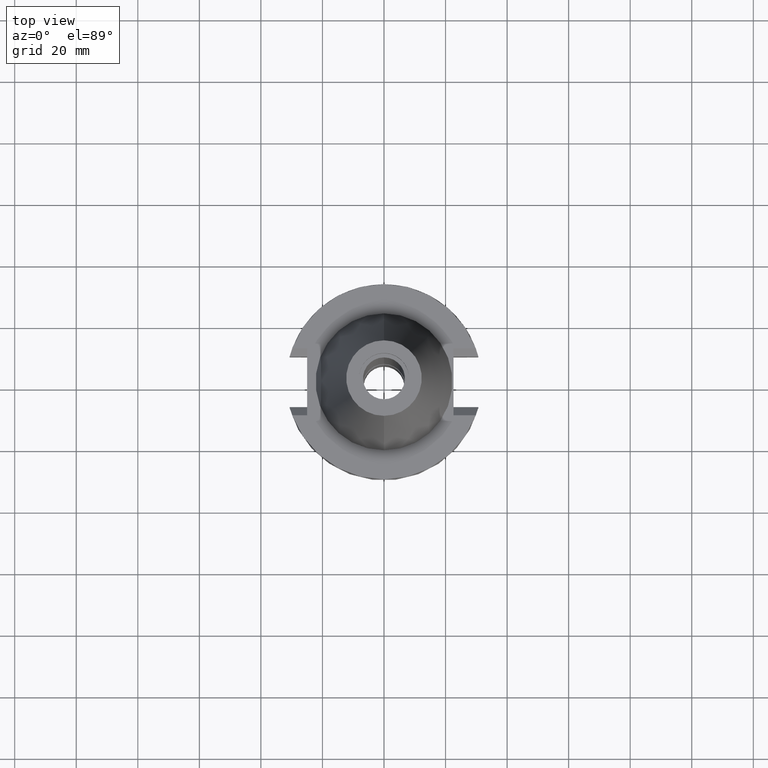
[diagram: clean part render]
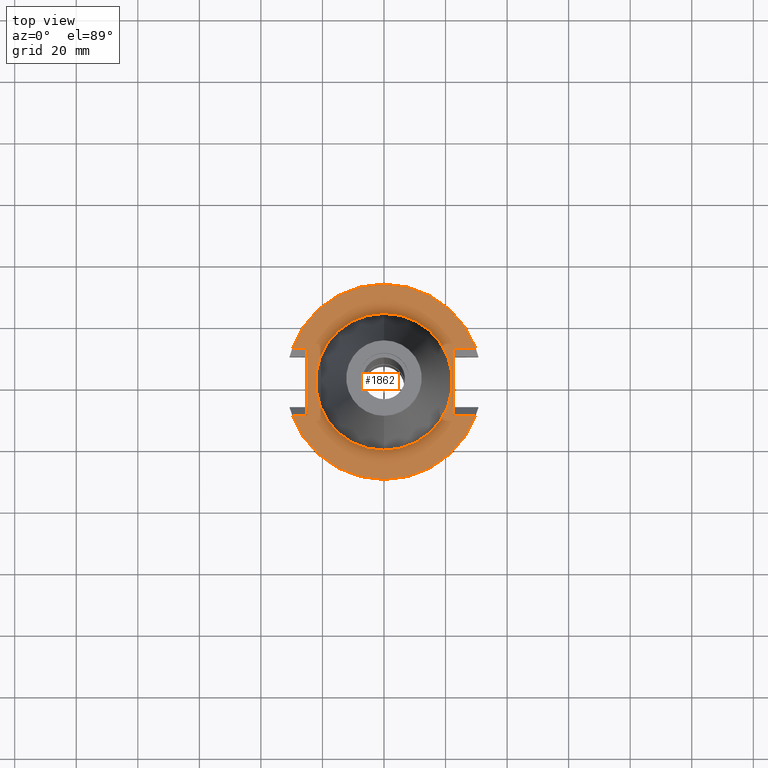
[diagram: same view with one face highlighted and labeled with its STEP entity id]
A machine part, top view. The second image highlights one B-rep face of the part: STEP entity #1862.
In plain terms, the highlighted planar face has unit normal (0, 0, -1).
Its self-contained STEP definition (entity closure, byte-faithful):
#35 = DIRECTION ( 'NONE',  ( 0.0000000000000000000, 0.0000000000000000000, -1.000000000000000000 ) ) ;
#121 = PLANE ( 'NONE',  #377 ) ;
#211 = CARTESIAN_POINT ( 'NONE',  ( 29.82399034335000110, 10.89000000000000057, -1.000000000001000089 ) ) ;
#226 = CARTESIAN_POINT ( 'NONE',  ( -29.82399034335000110, 10.89000000000000057, -1.000000000000000000 ) ) ;
#235 = ORIENTED_EDGE ( 'NONE', *, *, #2080, .T. ) ;
#266 = CARTESIAN_POINT ( 'NONE',  ( 22.57000000000000028, 10.89000000000000057, -1.000000000000000000 ) ) ;
#275 = DIRECTION ( 'NONE',  ( 1.000000000000000000, 6.024046928780999571E-14, 0.0000000000000000000 ) ) ;
#327 = EDGE_CURVE ( 'NONE', #2753, #1372, #1111, .T. ) ;
#353 = DIRECTION ( 'NONE',  ( 0.0000000000000000000, -1.000000000000000000, 0.0000000000000000000 ) ) ;
#377 = AXIS2_PLACEMENT_3D ( 'NONE', #2600, #626, #1136 ) ;
#382 = DIRECTION ( 'NONE',  ( 0.0000000000000000000, 1.000000000000000000, 0.0000000000000000000 ) ) ;
#522 = CARTESIAN_POINT ( 'NONE',  ( 22.57000000000000028, -10.89000000000000057, -1.000000000000000000 ) ) ;
#586 = CIRCLE ( 'NONE', #1443, 22.22500000000000142 ) ;
#626 = DIRECTION ( 'NONE',  ( 0.0000000000000000000, 0.0000000000000000000, -1.000000000000000000 ) ) ;
#651 = CIRCLE ( 'NONE', #2026, 31.75000000000000000 ) ;
#675 = CARTESIAN_POINT ( 'NONE',  ( 0.0000000000000000000, 2.190984972184999566E-14, -1.000000000000000000 ) ) ;
#728 = CARTESIAN_POINT ( 'NONE',  ( 0.0000000000000000000, 22.22500000000000142, -1.000000000000000000 ) ) ;
#845 = DIRECTION ( 'NONE',  ( 0.0000000000000000000, 1.000000000000000000, 0.0000000000000000000 ) ) ;
#892 = LINE ( 'NONE', #2397, #2489 ) ;
#918 = LINE ( 'NONE', #1892, #2929 ) ;
#952 = ORIENTED_EDGE ( 'NONE', *, *, #1421, .F. ) ;
#1051 = DIRECTION ( 'NONE',  ( 0.0000000000000000000, -1.000000000000000000, 0.0000000000000000000 ) ) ;
#1072 = FACE_OUTER_BOUND ( 'NONE', #2534, .T. ) ;
#1088 = LINE ( 'NONE', #1360, #1504 ) ;
#1099 = CARTESIAN_POINT ( 'NONE',  ( 22.57000000000000028, -10.89000000000000057, -1.000000000000000000 ) ) ;
#1111 = LINE ( 'NONE', #2620, #2015 ) ;
#1113 = CARTESIAN_POINT ( 'NONE',  ( 0.0000000000000000000, -22.22500000000000142, -1.000000000000000000 ) ) ;
#1136 = DIRECTION ( 'NONE',  ( 0.0000000000000000000, -1.000000000000000000, 0.0000000000000000000 ) ) ;
#1210 = CARTESIAN_POINT ( 'NONE',  ( -24.98000000000000043, -10.89000000000000057, -1.000000000000000000 ) ) ;
#1214 = VERTEX_POINT ( 'NONE', #1099 ) ;
#1228 = VECTOR ( 'NONE', #275, 1000.000000000000000 ) ;
#1273 = ORIENTED_EDGE ( 'NONE', *, *, #2268, .F. ) ;
#1360 = CARTESIAN_POINT ( 'NONE',  ( 22.57000000000000028, 10.89000000000000057, -1.000000000000000000 ) ) ;
#1372 = VERTEX_POINT ( 'NONE', #2427 ) ;
#1378 = CARTESIAN_POINT ( 'NONE',  ( 0.0000000000000000000, 2.190984972184999566E-14, -1.000000000000000000 ) ) ;
#1409 = ORIENTED_EDGE ( 'NONE', *, *, #1710, .T. ) ;
#1421 = EDGE_CURVE ( 'NONE', #1571, #3112, #2591, .T. ) ;
#1443 = AXIS2_PLACEMENT_3D ( 'NONE', #2911, #2887, #845 ) ;
#1444 = VERTEX_POINT ( 'NONE', #1690 ) ;
#1463 = VERTEX_POINT ( 'NONE', #728 ) ;
#1504 = VECTOR ( 'NONE', #1635, 1000.000000000000000 ) ;
#1571 = VERTEX_POINT ( 'NONE', #226 ) ;
#1635 = DIRECTION ( 'NONE',  ( 0.0000000000000000000, -1.000000000000000000, 0.0000000000000000000 ) ) ;
#1690 = CARTESIAN_POINT ( 'NONE',  ( -24.98000000000000043, 10.89000000000000057, -1.000000000000000000 ) ) ;
#1698 = AXIS2_PLACEMENT_3D ( 'NONE', #675, #2186, #382 ) ;
#1710 = EDGE_CURVE ( 'NONE', #3290, #3112, #892, .T. ) ;
#1728 = CARTESIAN_POINT ( 'NONE',  ( -24.98000000000000043, 10.89000000000000057, -1.000000000000000000 ) ) ;
#1857 = DIRECTION ( 'NONE',  ( 0.0000000000000000000, 0.0000000000000000000, 1.000000000000000000 ) ) ;
#1862 = ADVANCED_FACE ( 'NONE', ( #1072, #2093 ), #121, .F. ) ;
#1882 = ORIENTED_EDGE ( 'NONE', *, *, #2961, .F. ) ;
#1892 = CARTESIAN_POINT ( 'NONE',  ( -24.98000000000000043, 10.89000000000000057, -1.000000000000000000 ) ) ;
#1909 = DIRECTION ( 'NONE',  ( -1.000000000000000000, -8.801124924650999988E-14, 0.0000000000000000000 ) ) ;
#1915 = DIRECTION ( 'NONE',  ( 0.0000000000000000000, -1.000000000000000000, 0.0000000000000000000 ) ) ;
#1922 = EDGE_CURVE ( 'NONE', #3290, #1214, #1088, .T. ) ;
#1941 = EDGE_CURVE ( 'NONE', #1463, #2407, #586, .T. ) ;
#1990 = ORIENTED_EDGE ( 'NONE', *, *, #1941, .F. ) ;
#2015 = VECTOR ( 'NONE', #2150, 1000.000000000000000 ) ;
#2026 = AXIS2_PLACEMENT_3D ( 'NONE', #2305, #35, #1051 ) ;
#2080 = EDGE_CURVE ( 'NONE', #1444, #2753, #2953, .T. ) ;
#2093 = FACE_BOUND ( 'NONE', #2819, .T. ) ;
#2150 = DIRECTION ( 'NONE',  ( -1.000000000000000000, 8.911138986208999927E-14, 0.0000000000000000000 ) ) ;
#2186 = DIRECTION ( 'NONE',  ( 0.0000000000000000000, 0.0000000000000000000, -1.000000000000000000 ) ) ;
#2191 = ORIENTED_EDGE ( 'NONE', *, *, #2649, .F. ) ;
#2268 = EDGE_CURVE ( 'NONE', #1214, #2522, #2562, .T. ) ;
#2303 = EDGE_CURVE ( 'NONE', #2522, #1372, #651, .T. ) ;
#2305 = CARTESIAN_POINT ( 'NONE',  ( 0.0000000000000000000, 2.190984972184999566E-14, -1.000000000000000000 ) ) ;
#2397 = CARTESIAN_POINT ( 'NONE',  ( 22.57000000000000028, 10.89000000000000057, -1.000000000000000000 ) ) ;
#2407 = VERTEX_POINT ( 'NONE', #1113 ) ;
#2427 = CARTESIAN_POINT ( 'NONE',  ( -29.82399034335000110, -10.89000000000000057, -1.000000000001000089 ) ) ;
#2450 = AXIS2_PLACEMENT_3D ( 'NONE', #1378, #1857, #353 ) ;
#2489 = VECTOR ( 'NONE', #3215, 1000.000000000000000 ) ;
#2496 = VECTOR ( 'NONE', #1915, 1000.000000000000000 ) ;
#2510 = CIRCLE ( 'NONE', #2450, 22.22500000000000142 ) ;
#2522 = VERTEX_POINT ( 'NONE', #3143 ) ;
#2534 = EDGE_LOOP ( 'NONE', ( #1409, #952, #2191, #235, #2744, #2552, #1273, #2793 ) ) ;
#2552 = ORIENTED_EDGE ( 'NONE', *, *, #2303, .F. ) ;
#2562 = LINE ( 'NONE', #522, #1228 ) ;
#2591 = CIRCLE ( 'NONE', #1698, 31.75000000000000000 ) ;
#2600 = CARTESIAN_POINT ( 'NONE',  ( 0.0000000000000000000, 1.212400331155999925E-14, -1.000000000000000000 ) ) ;
#2620 = CARTESIAN_POINT ( 'NONE',  ( -24.98000000000000043, -10.89000000000000057, -1.000000000000000000 ) ) ;
#2649 = EDGE_CURVE ( 'NONE', #1444, #1571, #918, .T. ) ;
#2744 = ORIENTED_EDGE ( 'NONE', *, *, #327, .T. ) ;
#2753 = VERTEX_POINT ( 'NONE', #1210 ) ;
#2793 = ORIENTED_EDGE ( 'NONE', *, *, #1922, .F. ) ;
#2819 = EDGE_LOOP ( 'NONE', ( #1990, #1882 ) ) ;
#2887 = DIRECTION ( 'NONE',  ( 0.0000000000000000000, 0.0000000000000000000, 1.000000000000000000 ) ) ;
#2911 = CARTESIAN_POINT ( 'NONE',  ( 0.0000000000000000000, 2.190984972184999566E-14, -1.000000000000000000 ) ) ;
#2929 = VECTOR ( 'NONE', #1909, 1000.000000000000000 ) ;
#2953 = LINE ( 'NONE', #1728, #2496 ) ;
#2961 = EDGE_CURVE ( 'NONE', #2407, #1463, #2510, .T. ) ;
#3112 = VERTEX_POINT ( 'NONE', #211 ) ;
#3143 = CARTESIAN_POINT ( 'NONE',  ( 29.82399034335000110, -10.89000000000000057, -1.000000000001000089 ) ) ;
#3215 = DIRECTION ( 'NONE',  ( 1.000000000000000000, -5.877118954907999932E-14, 0.0000000000000000000 ) ) ;
#3290 = VERTEX_POINT ( 'NONE', #266 ) ;